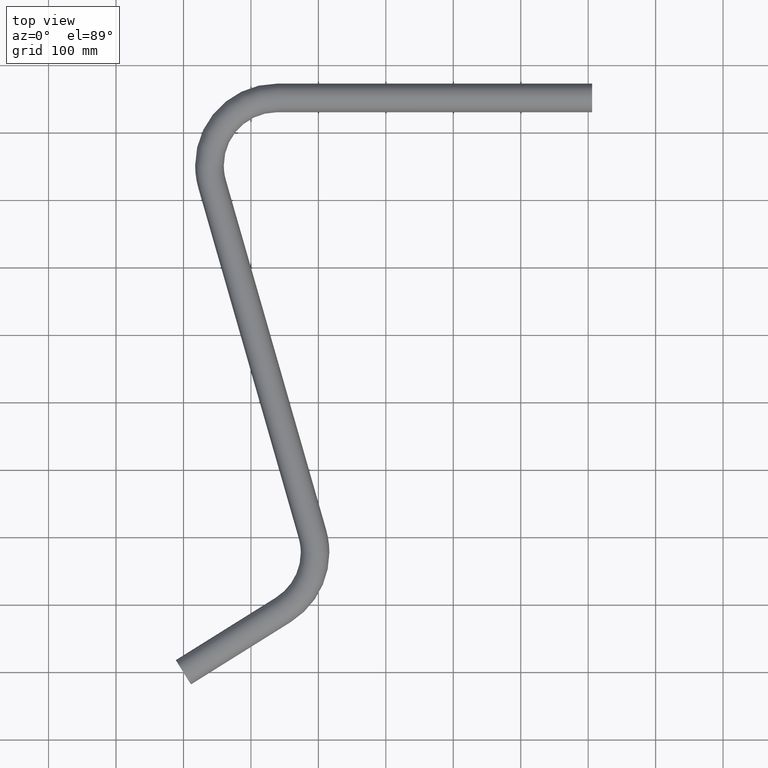
[diagram: clean part render]
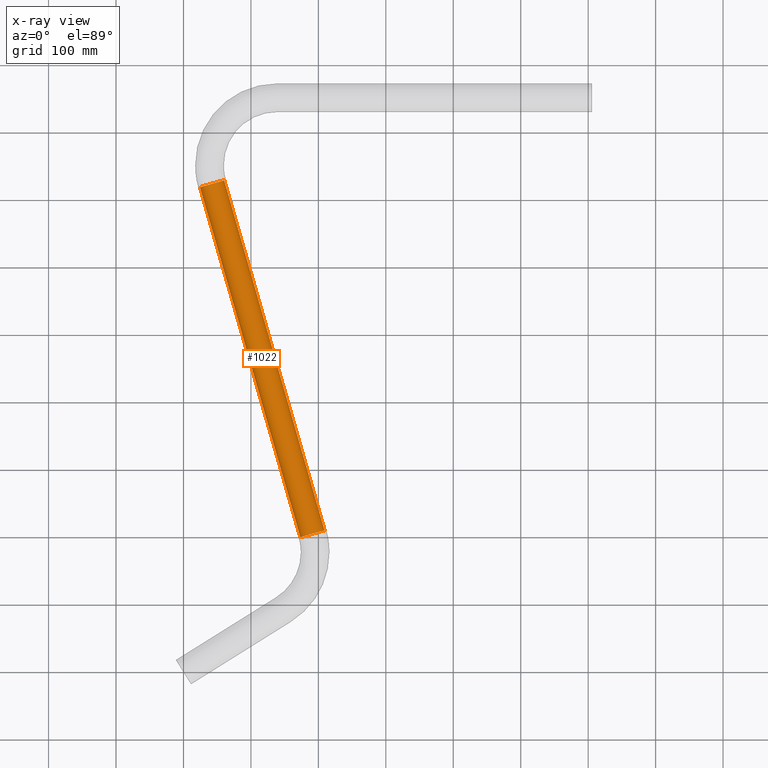
[diagram: x-ray — body ghosted, one internal face saturated and labeled with its STEP entity id]
A machine part, top view, then the same camera in x-ray: the body is ghosted and one INTERNAL B-rep face — a face not visible from any outside direction — is saturated and labeled: STEP entity #1022.
In plain terms, the highlighted cylindrical surface (edge-blend (fillet) strip) has radius 18.6 mm, axis along (-0.2756, 0.9613, 0).
Its self-contained STEP definition (entity closure, byte-faithful):
#412 = AXIS2_PLACEMENT_3D ( 'NONE', #1682, #8924, #2721 ) ;
#1022 = ADVANCED_FACE ( 'NONE', ( #2888 ), #10821, .F. ) ;
#1274 = ORIENTED_EDGE ( 'NONE', *, *, #10916, .T. ) ;
#1682 = CARTESIAN_POINT ( 'NONE',  ( 191.2412594555299000, 204.9160804766116300, 0.0000000000000000000 ) ) ;
#1867 = CARTESIAN_POINT ( 'NONE',  ( 209.1207269999823100, 210.0429352948089300, 2.277843046414077900E-015 ) ) ;
#2063 = DIRECTION ( 'NONE',  ( -0.2756373558170759400, 0.9612616959382970200, -3.826221258505972300E-017 ) ) ;
#2299 = VERTEX_POINT ( 'NONE', #9488 ) ;
#2721 = DIRECTION ( 'NONE',  ( -0.9612616959382970200, -0.2756373558170756600, 0.0000000000000000000 ) ) ;
#2888 = FACE_OUTER_BOUND ( 'NONE', #4619, .T. ) ;
#3314 = CARTESIAN_POINT ( 'NONE',  ( 173.3617919110774900, 199.7892256584143000, 0.0000000000000000000 ) ) ;
#4023 = AXIS2_PLACEMENT_3D ( 'NONE', #8264, #2063, #9296 ) ;
#4619 = EDGE_LOOP ( 'NONE', ( #12849, #12966, #9674, #1274 ) ) ;
#4990 = EDGE_CURVE ( 'NONE', #2299, #12026, #9034, .T. ) ;
#5348 = LINE ( 'NONE', #1867, #7775 ) ;
#5558 = DIRECTION ( 'NONE',  ( -0.2756373558170607800, 0.9612616959383011300, 0.0000000000000000000 ) ) ;
#7105 = CIRCLE ( 'NONE', #4023, 18.60000000000000900 ) ;
#7775 = VECTOR ( 'NONE', #10133, 1000.000000000000200 ) ;
#7837 = EDGE_CURVE ( 'NONE', #10163, #8288, #5348, .T. ) ;
#8017 = CARTESIAN_POINT ( 'NONE',  ( 24.53412691169229400, 718.8129742202606800, 0.0000000000000000000 ) ) ;
#8264 = CARTESIAN_POINT ( 'NONE',  ( 42.41359445614459400, 723.9398290384583600, 0.0000000000000000000 ) ) ;
#8288 = VERTEX_POINT ( 'NONE', #9004 ) ;
#8848 = CARTESIAN_POINT ( 'NONE',  ( 191.2412594555299000, 204.9160804766116300, 0.0000000000000000000 ) ) ;
#8924 = DIRECTION ( 'NONE',  ( -0.2756373558170759400, 0.9612616959382970200, -3.826221258505972300E-017 ) ) ;
#9004 = CARTESIAN_POINT ( 'NONE',  ( 60.29306200059694700, 729.0666838566558000, 2.277843046414077900E-015 ) ) ;
#9034 = LINE ( 'NONE', #3314, #11454 ) ;
#9296 = DIRECTION ( 'NONE',  ( -0.9612616959382965800, -0.2756373558170769900, 0.0000000000000000000 ) ) ;
#9488 = CARTESIAN_POINT ( 'NONE',  ( 173.3617919110775700, 199.7892256584140100, 0.0000000000000000000 ) ) ;
#9674 = ORIENTED_EDGE ( 'NONE', *, *, #4990, .T. ) ;
#10133 = DIRECTION ( 'NONE',  ( -0.2756373558170607800, 0.9612616959383011300, 0.0000000000000000000 ) ) ;
#10163 = VERTEX_POINT ( 'NONE', #11865 ) ;
#10821 = CYLINDRICAL_SURFACE ( 'NONE', #11239, 18.60000000000000900 ) ;
#10916 = EDGE_CURVE ( 'NONE', #12026, #8288, #7105, .T. ) ;
#10935 = DIRECTION ( 'NONE',  ( -0.9612616959383012400, -0.2756373558170605600, 0.0000000000000000000 ) ) ;
#11239 = AXIS2_PLACEMENT_3D ( 'NONE', #8848, #11970, #10935 ) ;
#11454 = VECTOR ( 'NONE', #5558, 1000.000000000000200 ) ;
#11865 = CARTESIAN_POINT ( 'NONE',  ( 209.1207269999822200, 210.0429352948092100, 2.277843046414077900E-015 ) ) ;
#11970 = DIRECTION ( 'NONE',  ( -0.2756373558170608400, 0.9612616959383013500, 0.0000000000000000000 ) ) ;
#12026 = VERTEX_POINT ( 'NONE', #8017 ) ;
#12502 = CIRCLE ( 'NONE', #412, 18.60000000000000100 ) ;
#12504 = EDGE_CURVE ( 'NONE', #2299, #10163, #12502, .T. ) ;
#12849 = ORIENTED_EDGE ( 'NONE', *, *, #7837, .F. ) ;
#12966 = ORIENTED_EDGE ( 'NONE', *, *, #12504, .F. ) ;